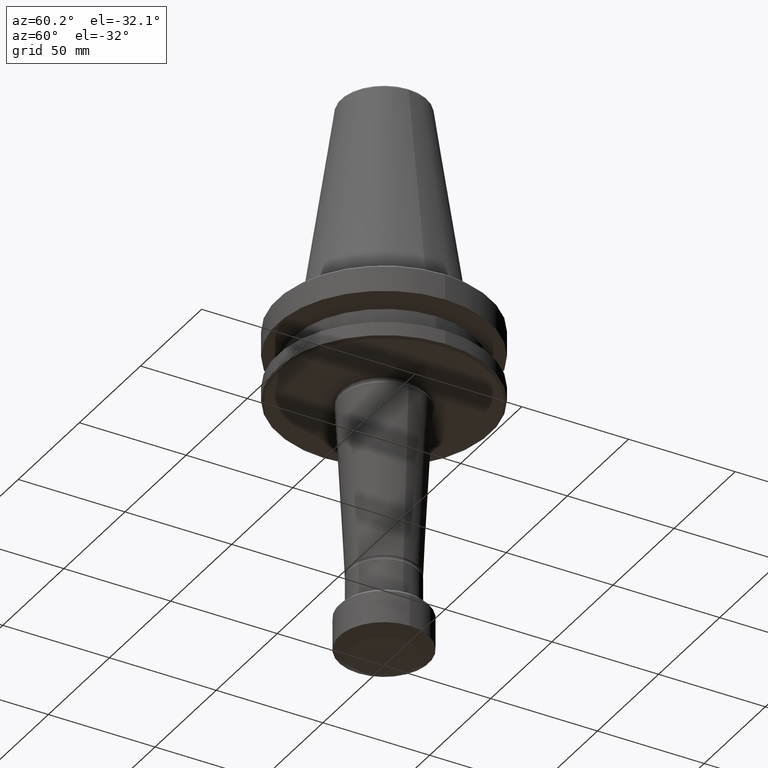
[diagram: clean part render]
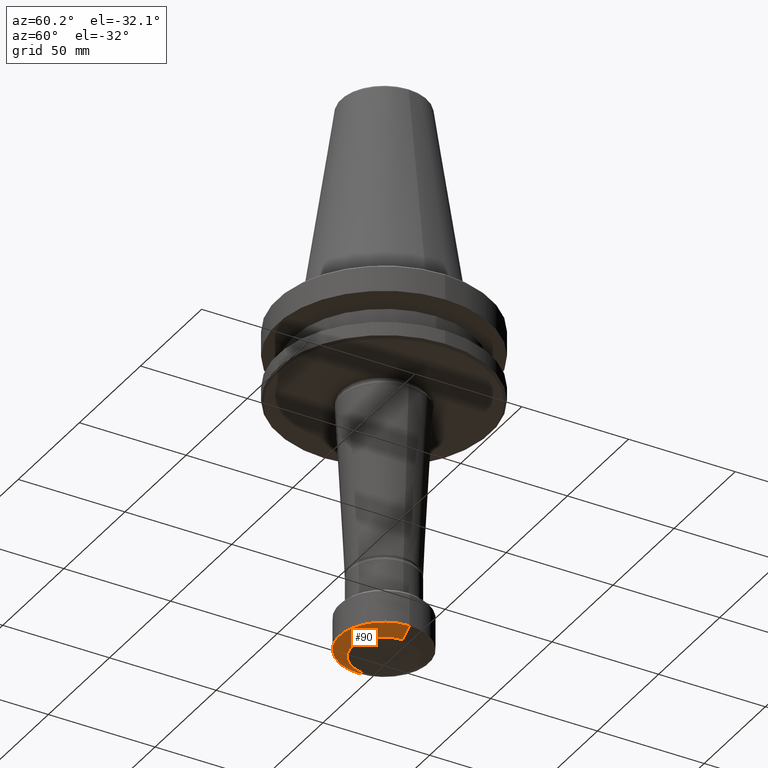
[diagram: same view with one face highlighted and labeled with its STEP entity id]
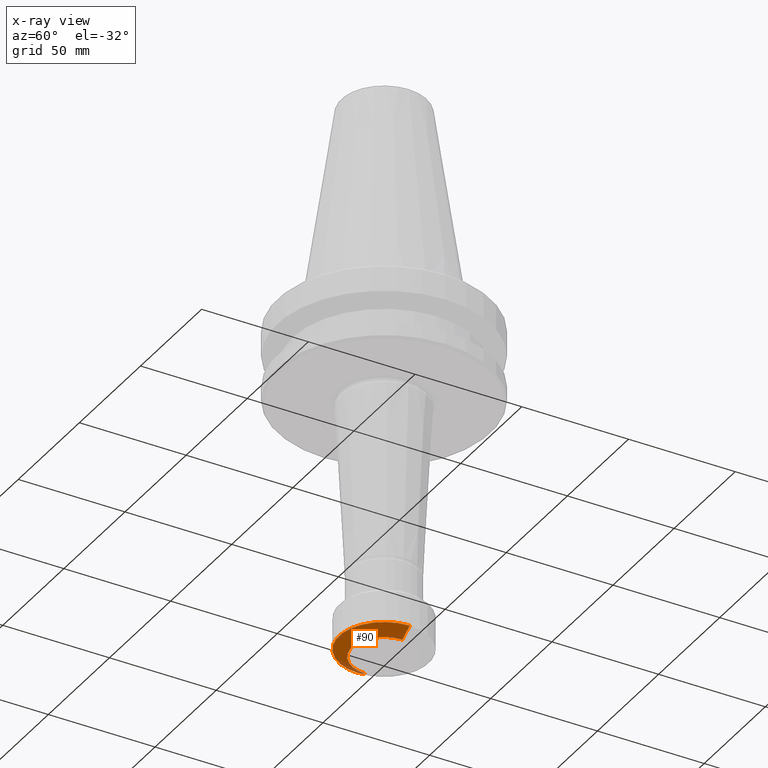
[diagram: x-ray of the same camera — body ghosted, the highlighted face saturated]
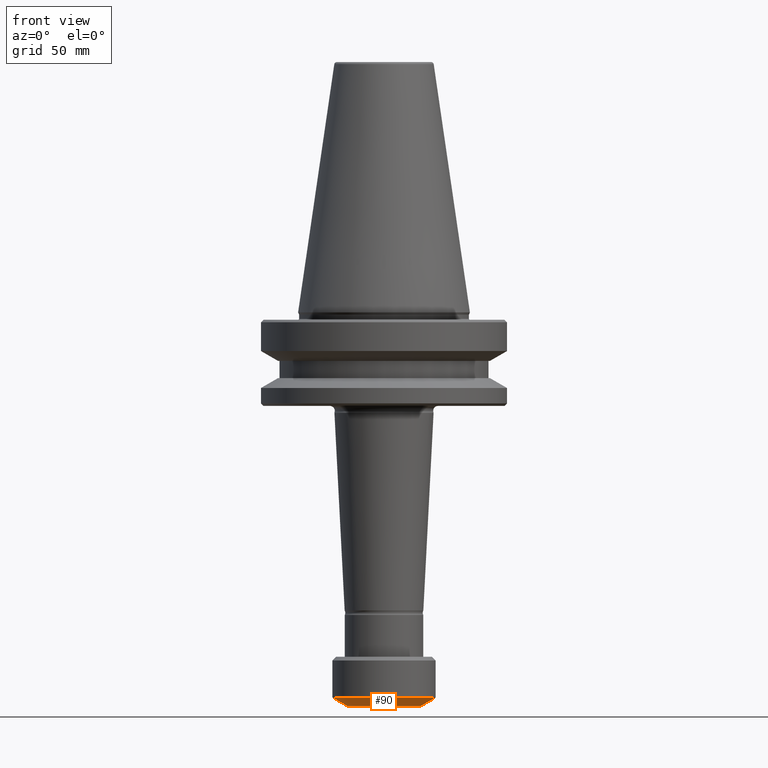
[diagram: same view with one face highlighted and labeled with its STEP entity id]
A machine part, auxiliary view. The second image highlights one B-rep face of the part: STEP entity #90.
The next image is the same camera in x-ray: the body ghosted, the highlighted face saturated — about 0% of this face is hidden behind the body in this view.
A second angle (front view) of the same face is appended — the face is thin or edge-on in the first view.
In plain terms, the highlighted conical surface has half-angle 60 deg.
Its self-contained STEP definition (entity closure, byte-faithful):
#34 = VECTOR ( 'NONE', #127, 999.9999999999998900 ) ;
#45 = CARTESIAN_POINT ( 'NONE',  ( 0.0000000000000000000, 0.0000000000000000000, -159.9959493605086000 ) ) ;
#50 = LINE ( 'NONE', #1100, #1174 ) ;
#90 = ADVANCED_FACE ( 'NONE', ( #264 ), #505, .T. ) ;
#127 = DIRECTION ( 'NONE',  ( 0.8660254037844380400, 0.0000000000000000000, 0.5000000000000012200 ) ) ;
#154 = CIRCLE ( 'NONE', #399, 21.00000000000000700 ) ;
#157 = ORIENTED_EDGE ( 'NONE', *, *, #1219, .F. ) ;
#245 = EDGE_CURVE ( 'NONE', #721, #1030, #630, .T. ) ;
#250 = ORIENTED_EDGE ( 'NONE', *, *, #871, .F. ) ;
#264 = FACE_OUTER_BOUND ( 'NONE', #345, .T. ) ;
#345 = EDGE_LOOP ( 'NONE', ( #250, #1343, #1368, #157 ) ) ;
#352 = CARTESIAN_POINT ( 'NONE',  ( 21.00000000000000700, 0.0000000000000000000, -156.5318477453708100 ) ) ;
#399 = AXIS2_PLACEMENT_3D ( 'NONE', #1074, #864, #1371 ) ;
#409 = CARTESIAN_POINT ( 'NONE',  ( -21.00000000000000700, 2.571758278209442400E-015, -156.5318477453708100 ) ) ;
#464 = DIRECTION ( 'NONE',  ( -0.0000000000000000000, -0.0000000000000000000, 1.000000000000000000 ) ) ;
#493 = DIRECTION ( 'NONE',  ( -0.0000000000000000000, -0.0000000000000000000, 1.000000000000000000 ) ) ;
#505 = CONICAL_SURFACE ( 'NONE', #1202, 15.00000000000000000, 1.047197551196596300 ) ;
#630 = CIRCLE ( 'NONE', #675, 15.00000000000000000 ) ;
#675 = AXIS2_PLACEMENT_3D ( 'NONE', #45, #464, #993 ) ;
#694 = DIRECTION ( 'NONE',  ( 1.000000000000000000, 0.0000000000000000000, 0.0000000000000000000 ) ) ;
#716 = VERTEX_POINT ( 'NONE', #409 ) ;
#721 = VERTEX_POINT ( 'NONE', #853 ) ;
#833 = VERTEX_POINT ( 'NONE', #352 ) ;
#853 = CARTESIAN_POINT ( 'NONE',  ( -15.00000000000000000, 2.204364238465236200E-015, -159.9959493605086000 ) ) ;
#864 = DIRECTION ( 'NONE',  ( -0.0000000000000000000, -0.0000000000000000000, 1.000000000000000000 ) ) ;
#871 = EDGE_CURVE ( 'NONE', #721, #716, #50, .T. ) ;
#907 = CARTESIAN_POINT ( 'NONE',  ( 15.00000000000000000, 0.0000000000000000000, -159.9959493605086000 ) ) ;
#965 = CARTESIAN_POINT ( 'NONE',  ( 15.00000000000000000, 0.0000000000000000000, -159.9959493605086000 ) ) ;
#993 = DIRECTION ( 'NONE',  ( 1.000000000000000000, 0.0000000000000000000, 0.0000000000000000000 ) ) ;
#1001 = CARTESIAN_POINT ( 'NONE',  ( 0.0000000000000000000, 0.0000000000000000000, -159.9959493605086000 ) ) ;
#1030 = VERTEX_POINT ( 'NONE', #965 ) ;
#1074 = CARTESIAN_POINT ( 'NONE',  ( 0.0000000000000000000, 0.0000000000000000000, -156.5318477453708100 ) ) ;
#1082 = EDGE_CURVE ( 'NONE', #1030, #833, #1122, .T. ) ;
#1100 = CARTESIAN_POINT ( 'NONE',  ( -15.00000000000000000, 1.836970198721029600E-015, -159.9959493605086000 ) ) ;
#1122 = LINE ( 'NONE', #907, #34 ) ;
#1174 = VECTOR ( 'NONE', #1303, 999.9999999999998900 ) ;
#1202 = AXIS2_PLACEMENT_3D ( 'NONE', #1001, #493, #694 ) ;
#1219 = EDGE_CURVE ( 'NONE', #716, #833, #154, .T. ) ;
#1303 = DIRECTION ( 'NONE',  ( -0.8660254037844380400, 1.060575238724906200E-016, 0.5000000000000012200 ) ) ;
#1343 = ORIENTED_EDGE ( 'NONE', *, *, #245, .T. ) ;
#1368 = ORIENTED_EDGE ( 'NONE', *, *, #1082, .T. ) ;
#1371 = DIRECTION ( 'NONE',  ( 1.000000000000000000, 0.0000000000000000000, 0.0000000000000000000 ) ) ;